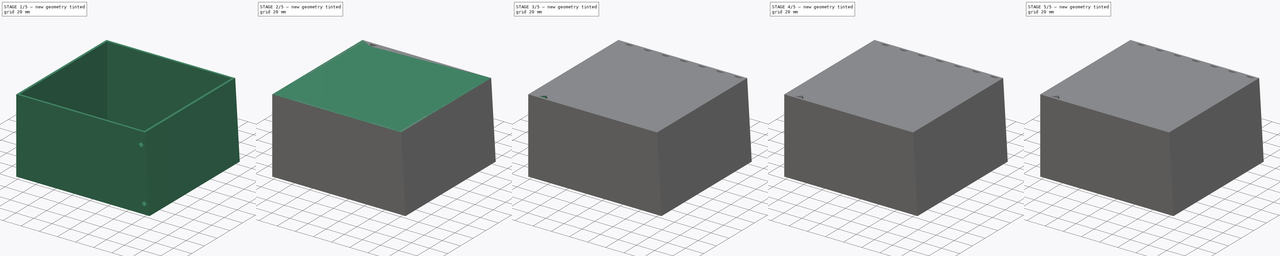
[diagram: build sequence overview — one tinted view per stage of 5, left to right]
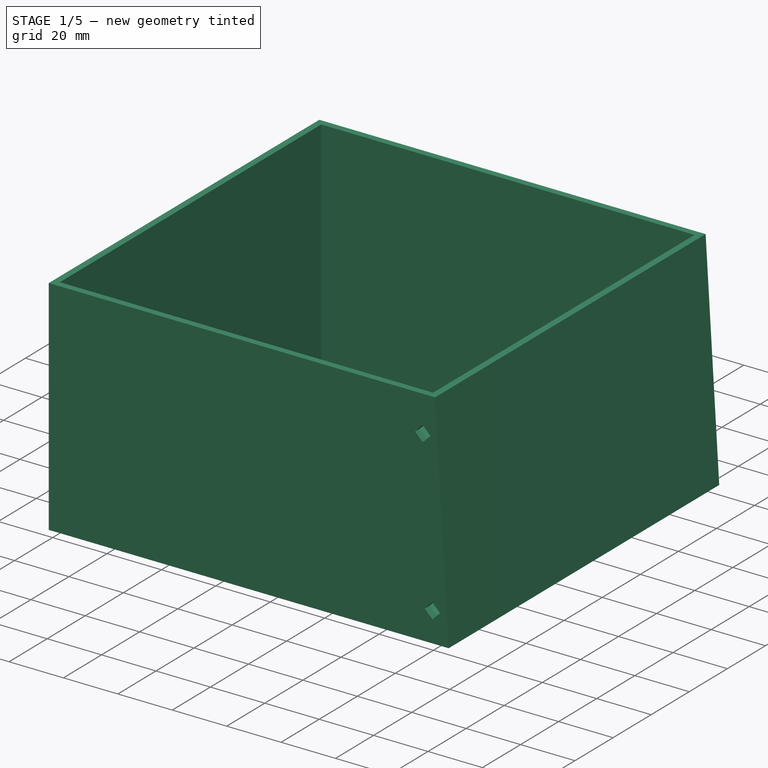
[diagram: stage 1 of 5 — iso view after this stage's code; geometry added in this stage tinted green]
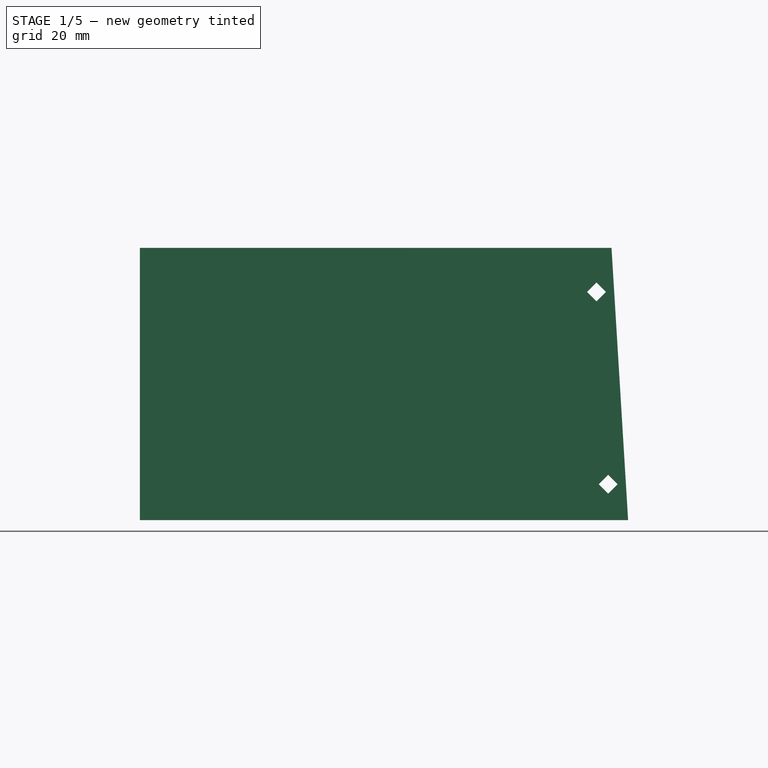
[diagram: stage 1 of 5 — front view after this stage's code; geometry added in this stage tinted green]
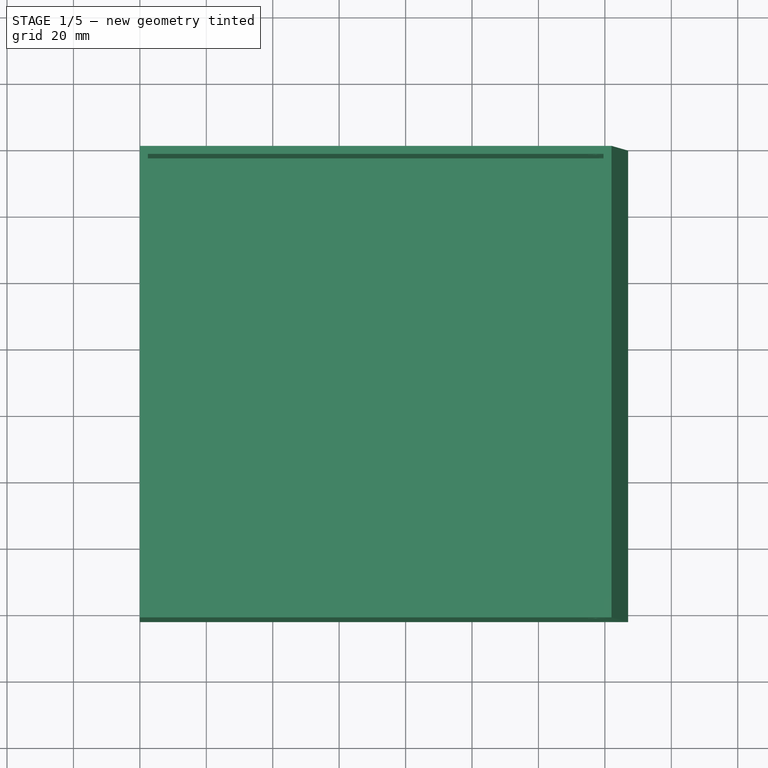
[diagram: stage 1 of 5 — top view after this stage's code; geometry added in this stage tinted green]
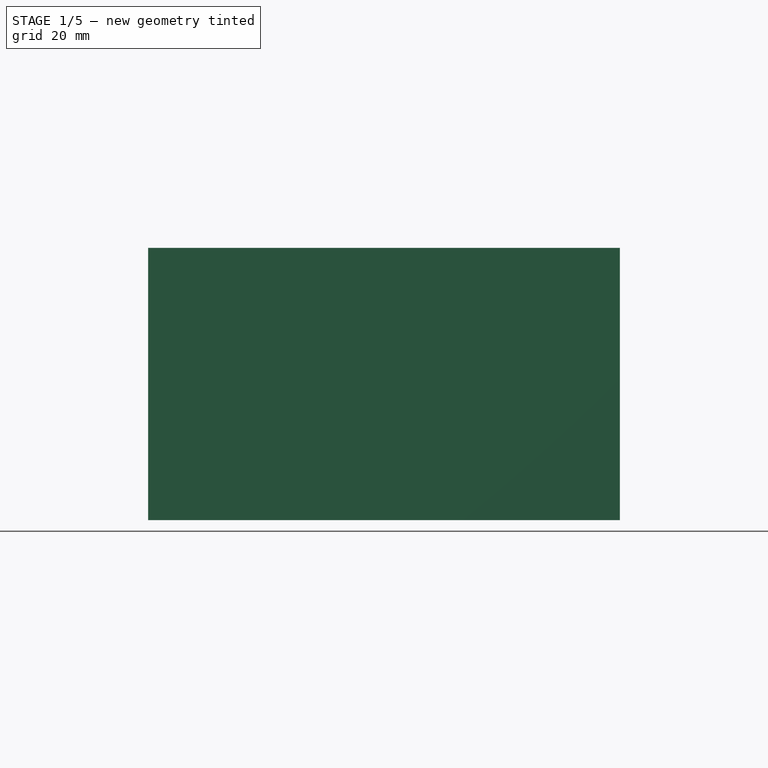
[diagram: stage 1 of 5 — right view after this stage's code; geometry added in this stage tinted green]
FCSTD DOCUMENT  (FreeCAD 1.0R39109 (Git))
Label: zip_tied_basket
License: All rights reserved
LicenseURL: https://en.wikipedia.org/wiki/All_rights_reserved
objects: PartDesign::LinearPattern×9, PartDesign::SubtractiveBox×6, Sketcher::SketchObject×4, Spreadsheet::Sheet×3, PartDesign::Pad×3, PartDesign::MultiTransform×3, PartDesign::Body×3, PartDesign::Thickness×2, PartDesign::Fillet×1, PartDesign::Pocket×1
note: 74 computed .brp shape members not serialized (recipe doc carries the construction recipe); baked Part::Feature solids carry a one-line shape summary decoded from their .brp

FEATURE [PartDesign::Body] Body
  AllowCompound = false
  Group = -> [Sketch,Pad,Thickness,Box,MultiTransform,LinearPattern,LinearPattern001,Box001,MultiTransform001,LinearPattern002,LinearPattern003,Box002,LinearPattern004]
  Origin = -> Origin
  Tip = -> LinearPattern004
FEATURE [Sketcher::SketchObject] Sketch001
  ArcFitTolerance = 1e-06
  AttachmentSupport = -> [XZ_Plane001]
  FullyConstrained = true
  MakeInternals = false
  MapMode = 5
  Placement = pos=(0,0,0) rot=(1,0,0;1.5708rad)
  expr: Constraints[10] = <<mea001>>.height
  expr: Constraints[8] = <<mea001>>.bottomLength
  expr: Constraints[9] = <<mea001>>.upperLength
  sketch-geometry (4):
    g0: LineSegment StartX=0 StartY=82 StartZ=0 EndX=0 EndY=0 EndZ=0
    g1: LineSegment StartX=0 StartY=82 StartZ=0 EndX=142 EndY=82 EndZ=0
    g2: LineSegment StartX=142 StartY=82 StartZ=0 EndX=147 EndY=0 EndZ=0
    g3: LineSegment StartX=147 StartY=0 StartZ=0 EndX=0 EndY=0 EndZ=0
  constraints (11):
    c: PointOnObject(g0,g-2)
    c: Coincident(g0,g-1)
    c: Coincident(g1,g0)
    c: Horizontal(g1)
    c: Coincident(g2,g1)
    c: PointOnObject(g2,g-1)
    c: Coincident(g3,g2)
    c: Coincident(g3,g0)
    c: DistanceX(g3,g3) = 147
    c: DistanceX(g1,g1) = 142
    c: DistanceY(g0,g0) = 82
FEATURE [PartDesign::Pad] Pad001
  Direction = (0,-1,2e-16)
  Length = 142
  Length2 = 10
  Placement = pos=(0,0,0) rot=(1,0,0;1.5708rad)
  Profile = -> Sketch001
  ReferenceAxis = -> Sketch001 [N_Axis]
  Refine = true
  Suppressed = false
  Type = 0
  expr: Length = <<mea001>>.width
FEATURE [Spreadsheet::Sheet] Spreadsheet001  label="mea001"
  cells = A1='height; B1(height)==82 mm; A2='upperLength; B2(upperLength)==142 mm; A3='bottomLength; B3(bottomLength)==147 mm; A4='width; B4(width)==142 mm
FEATURE [PartDesign::Thickness] Thickness001
  Base = -> Pad001 [Face4]
  BaseFeature = -> Pad001
  Intersection = false
  Join = 0
  Mode = 0
  Refine = true
  Reversed = true
  SupportTransform = false
  Suppressed = false
  Value = 2.4
FEATURE [PartDesign::SubtractiveBox] Box003
  AttacherType = Attacher::AttachEngine3D
  AttachmentOffset = pos=(-141,8,0) rot=(0,0,1;0.785398rad)
  AttachmentSupport = -> [Thickness001]
  BaseFeature = -> Thickness001
  Height = 142
  Length = 4
  MapMode = 5
  Placement = pos=(141,-142,8) rot=(0.281085,0.678598,0.678598;3.68962rad)
  Refine = true
  Suppressed = false
  Width = 4
  expr: Height = <<mea>>.width
FEATURE [PartDesign::LinearPattern] LinearPattern005
  BaseFeature = -> Box003
  Direction = -> Box003 [Edge20]
  Length = 58
  Mode = 0
  Occurrences = 2
  Offset = 58
  Originals = -> [Box003]
  Placement = pos=(141,-142,8) rot=(0.281085,0.678598,0.678598;3.68962rad)
  Refine = true
  Reversed = true
  Suppressed = false
  TransformMode = 0
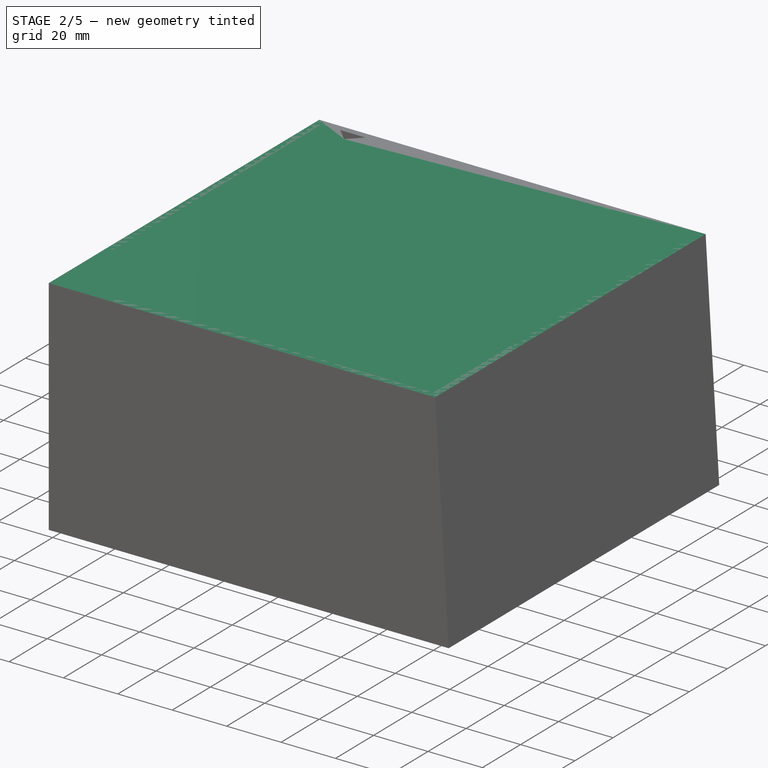
[diagram: stage 2 of 5 — iso view after this stage's code; geometry added in this stage tinted green]
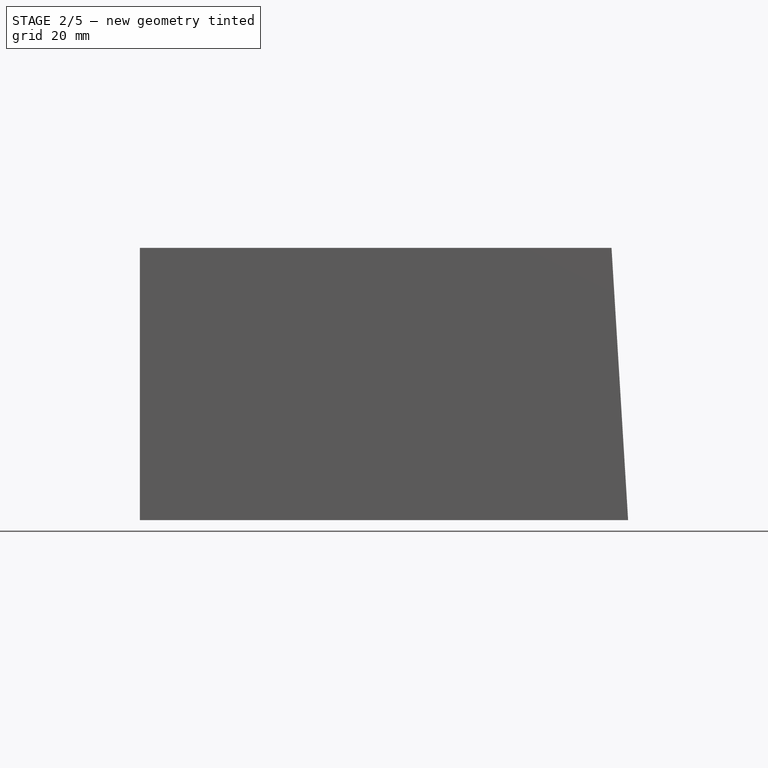
[diagram: stage 2 of 5 — front view after this stage's code; geometry added in this stage tinted green]
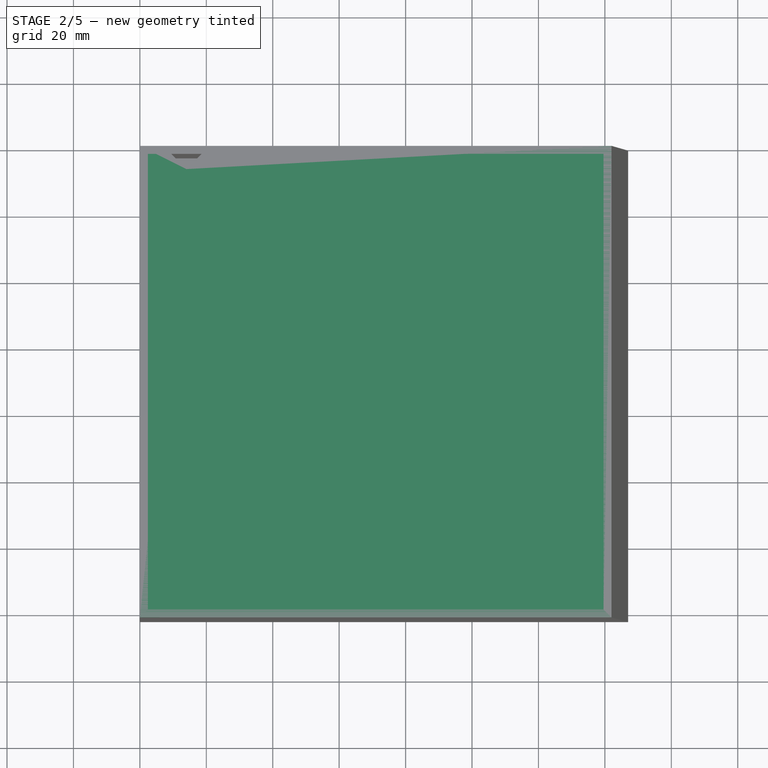
[diagram: stage 2 of 5 — top view after this stage's code; geometry added in this stage tinted green]
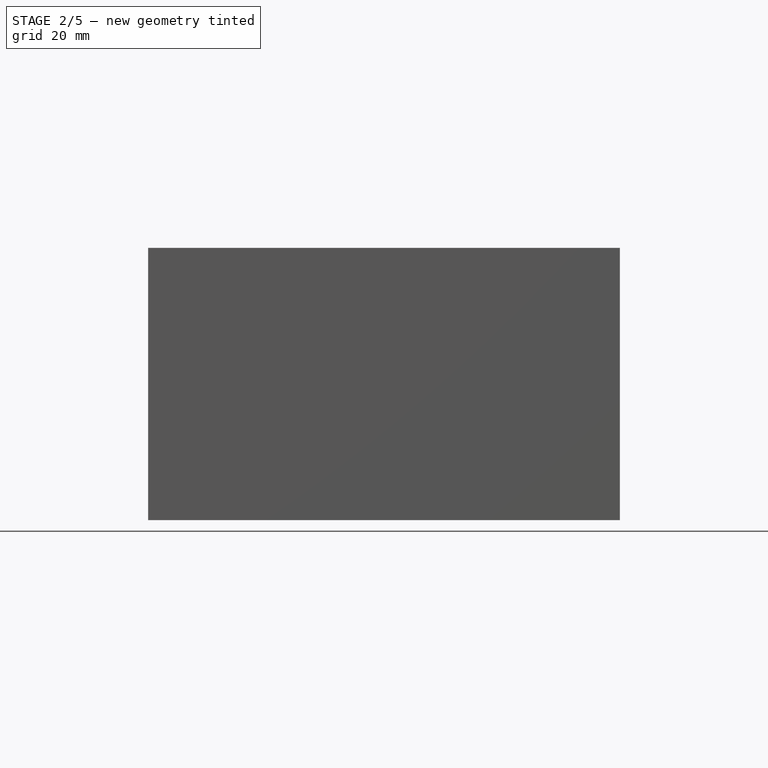
[diagram: stage 2 of 5 — right view after this stage's code; geometry added in this stage tinted green]
FEATURE [Sketcher::SketchObject] Sketch002
  ArcFitTolerance = 1e-06
  AttachmentSupport = -> [XZ_Plane002]
  FullyConstrained = true
  MakeInternals = false
  MapMode = 5
  Placement = pos=(0,0,0) rot=(1,0,0;1.5708rad)
  expr: Constraints[10] = <<mea002>>.height
  expr: Constraints[8] = <<mea002>>.bottomLength
  expr: Constraints[9] = <<mea002>>.upperLength
  sketch-geometry (4):
    g0: LineSegment StartX=0 StartY=82 StartZ=0 EndX=0 EndY=0 EndZ=0
    g1: LineSegment StartX=0 StartY=82 StartZ=0 EndX=142 EndY=82 EndZ=0
    g2: LineSegment StartX=142 StartY=82 StartZ=0 EndX=147 EndY=0 EndZ=0
    g3: LineSegment StartX=147 StartY=0 StartZ=0 EndX=0 EndY=0 EndZ=0
  constraints (11):
    c: PointOnObject(g0,g-2)
    c: Coincident(g0,g-1)
    c: Coincident(g1,g0)
    c: Horizontal(g1)
    c: Coincident(g2,g1)
    c: PointOnObject(g2,g-1)
    c: Coincident(g3,g2)
    c: Coincident(g3,g0)
    c: DistanceX(g3,g3) = 147
    c: DistanceX(g1,g1) = 142
    c: DistanceY(g0,g0) = 82
FEATURE [PartDesign::Pad] Pad002
  Direction = (0,-1,2e-16)
  Length = 142
  Length2 = 10
  Placement = pos=(0,0,0) rot=(1,0,0;1.5708rad)
  Profile = -> Sketch002
  ReferenceAxis = -> Sketch002 [N_Axis]
  Refine = true
  Suppressed = false
  Type = 0
  expr: Length = <<mea002>>.width
FEATURE [Spreadsheet::Sheet] Spreadsheet002  label="mea002"
  cells = A1='height; B1(height)==82 mm; A2='upperLength; B2(upperLength)==142 mm; A3='bottomLength; B3(bottomLength)==147 mm; A4='width; B4(width)==142 mm
FEATURE [PartDesign::SubtractiveBox] Box004
  AttacherType = Attacher::AttachEngine3D
  AttachmentOffset = pos=(14,-7,0) rot=(0,0,1;0.785398rad)
  AttachmentSupport = -> [XY_Plane002]
  BaseFeature = -> Pad002
  Height = 82
  Length = 10
  MapMode = 5
  Placement = pos=(14,-7,0) rot=(0,0,1;0.785398rad)
  Refine = true
  Suppressed = false
  Width = 10
  expr: Height = <<mea002>>.height
FEATURE [PartDesign::Body] Body002  label="vaseBody"
  AllowCompound = false
  Group = -> [Sketch002,Pad002,Box004,Fillet,LinearPattern006,Box005]
  Origin = -> Origin002
  Tip = -> Box005
FEATURE [Sketcher::SketchObject] Sketch004
  ArcFitTolerance = 1e-06
  AttachmentSupport = -> [LinearPattern005]
  ExternalGeometry = -> [LinearPattern005]
  FullyConstrained = true
  MakeInternals = false
  MapMode = 5
  Placement = pos=(146.492,-142,8.33486) rot=(0,1,0;1.5099rad)
  sketch-geometry (4):
    g0: LineSegment StartX=-63.802 StartY=134.172 StartZ=0 EndX=-60.9735 EndY=137 EndZ=0
    g1: LineSegment StartX=-60.9735 StartY=137 StartZ=0 EndX=-58.1451 EndY=134.172 EndZ=0
    g2: LineSegment StartX=-58.1451 StartY=134.172 StartZ=0 EndX=-60.9735 EndY=131.343 EndZ=0
    g3: LineSegment StartX=-60.9735 StartY=131.343 StartZ=0 EndX=-63.802 EndY=134.172 EndZ=0
  constraints (12):
    c: Distance(g0) = 4
    c: Angle(g-1,g0) = 0.785398
    c: Distance(g1) = 4
    c: Angle(g-1,g1) = -0.785398
    c: Coincident(g1,g0)
    c: Distance(g2) = 4
    c: Angle(g-1,g2) = -2.35619
    c: Coincident(g2,g1)
    c: Coincident(g3,g2)
    c: Coincident(g3,g0)
    c: Distance(g0,g-3) = 5
    c: Distance(g0,g-4) = 10
FEATURE [PartDesign::Pocket] Pocket
  BaseFeature = -> LinearPattern005
  Direction = (-0.998146,0,-0.0608626)
  Length = 5
  Length2 = 5
  Placement = pos=(141,-142,8) rot=(0.281085,0.678598,0.678598;3.68962rad)
  Profile = -> Sketch004
  ReferenceAxis = -> Sketch004 [N_Axis]
  Refine = true
  Suppressed = false
  Type = 0
FEATURE [PartDesign::LinearPattern] LinearPattern007
  Direction = -> Sketch004 [H_Axis]
  Length = 58
  Mode = 0
  Occurrences = 2
  Offset = 58
  Placement = pos=(141,-142,8) rot=(0.281085,0.678598,0.678598;3.68962rad)
  Refine = true
  Suppressed = false
  TransformMode = 0
FEATURE [PartDesign::LinearPattern] LinearPattern008
  Direction = -> Sketch004 [V_Axis]
  Length = 125
  Mode = 0
  Occurrences = 2
  Offset = 125
  Placement = pos=(141,-142,8) rot=(0.281085,0.678598,0.678598;3.68962rad)
  Refine = true
  Reversed = true
  Suppressed = false
  TransformMode = 0
FEATURE [PartDesign::MultiTransform] MultiTransform002
  BaseFeature = -> Pocket
  Originals = -> [Pocket]
  Placement = pos=(141,-142,8) rot=(0.281085,0.678598,0.678598;3.68962rad)
  Refine = true
  Suppressed = false
  TransformMode = 0
  Transformations = -> [LinearPattern007,LinearPattern008]
FEATURE [PartDesign::Body] Body001
  AllowCompound = false
  Group = -> [Sketch001,Pad001,Thickness001,Box003,LinearPattern005,Sketch004,Pocket,MultiTransform002,LinearPattern007,LinearPattern008]
  Origin = -> Origin001
  Tip = -> MultiTransform002
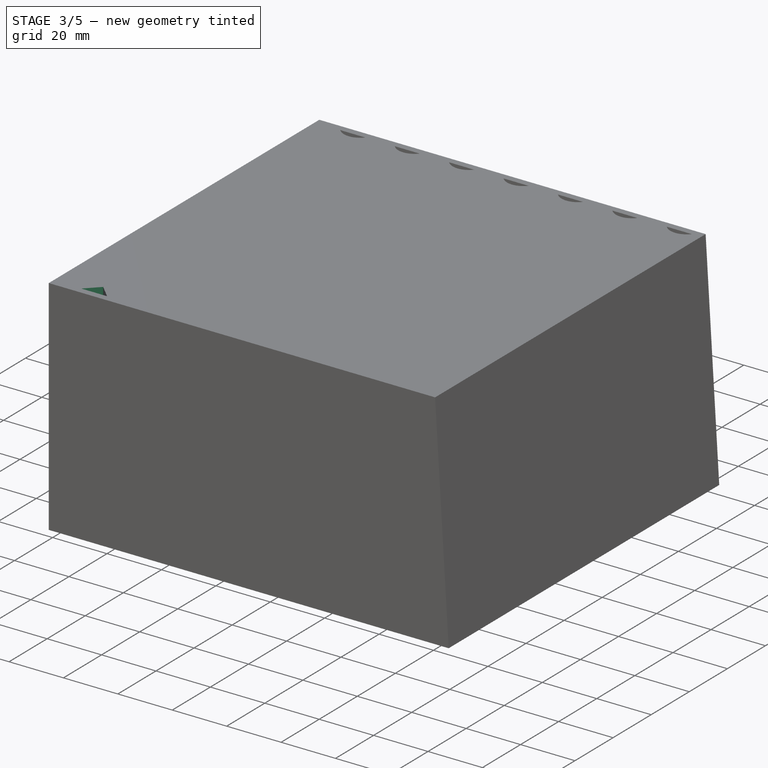
[diagram: stage 3 of 5 — iso view after this stage's code; geometry added in this stage tinted green]
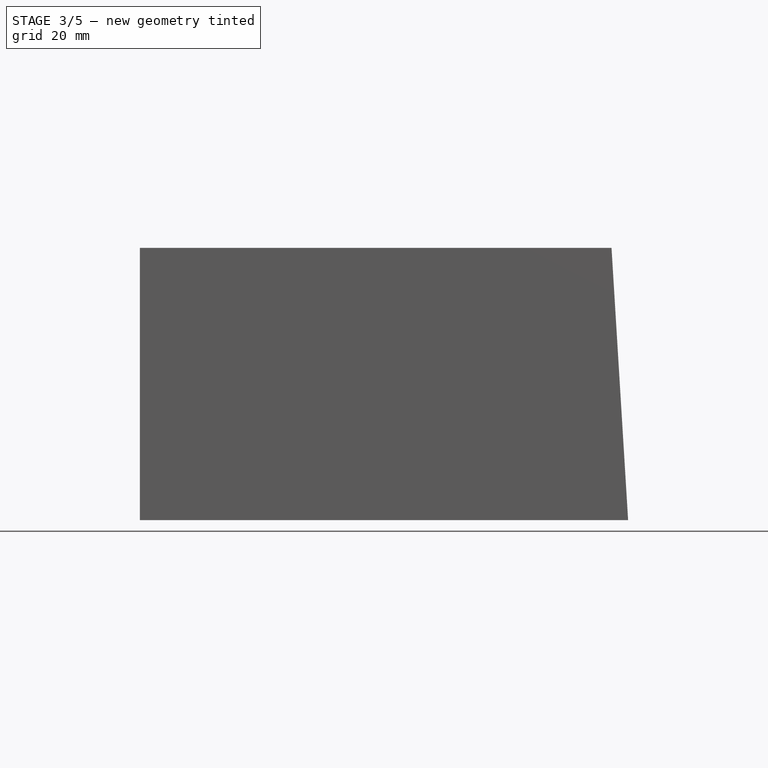
[diagram: stage 3 of 5 — front view after this stage's code; geometry added in this stage tinted green]
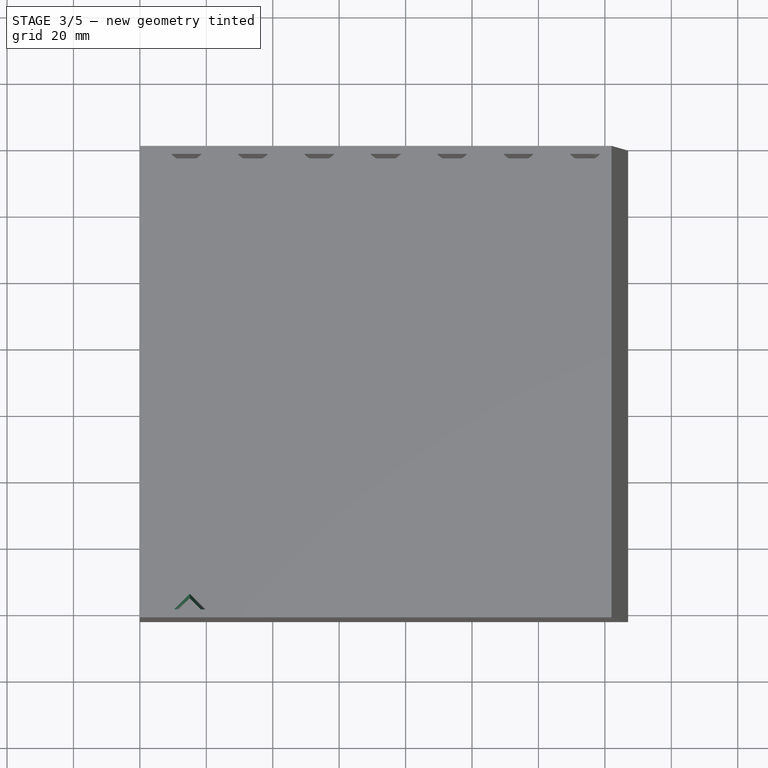
[diagram: stage 3 of 5 — top view after this stage's code; geometry added in this stage tinted green]
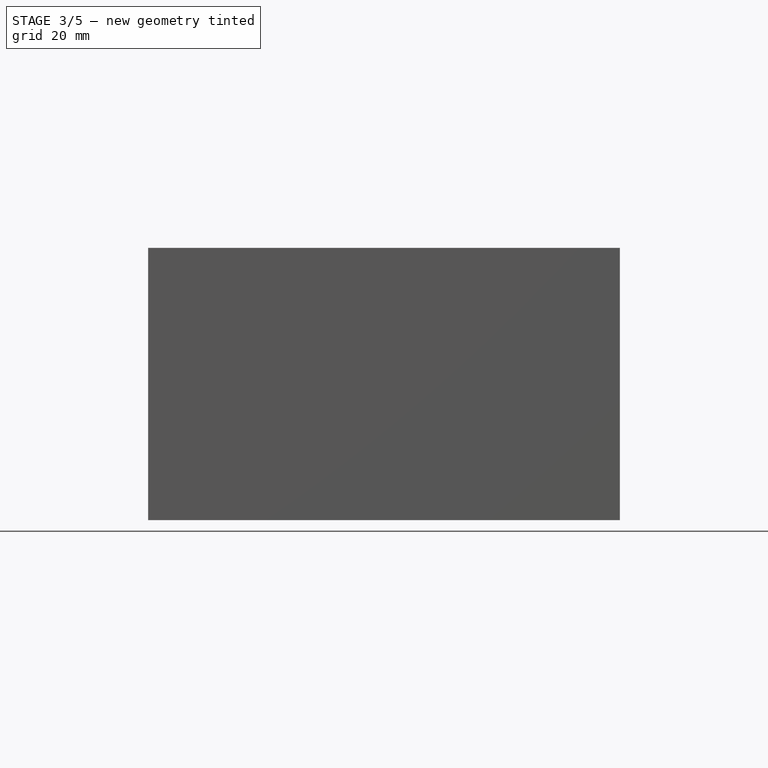
[diagram: stage 3 of 5 — right view after this stage's code; geometry added in this stage tinted green]
FEATURE [PartDesign::Fillet] Fillet
  Base = -> Box004 [Edge20,Edge19,Edge17]
  BaseFeature = -> Box004
  Placement = pos=(14,-7,0) rot=(0,0,1;0.785398rad)
  Radius = 6
  Refine = true
  SupportTransform = false
  Suppressed = false
  UseAllEdges = false
FEATURE [PartDesign::LinearPattern] LinearPattern006
  BaseFeature = -> Fillet
  Direction = -> X_Axis002
  Length = 120
  Mode = 1
  Occurrences = 7
  Offset = 20
  Originals = -> [Box004,Fillet]
  Placement = pos=(14,-7,0) rot=(0,0,1;0.785398rad)
  Refine = true
  Suppressed = false
  TransformMode = 0
FEATURE [PartDesign::SubtractiveBox] Box005
  AttacherType = Attacher::AttachEngine3D
  AttachmentOffset = pos=(15,-149,0) rot=(0,0,1;0.785398rad)
  AttachmentSupport = -> [XY_Plane002]
  BaseFeature = -> LinearPattern006
  Height = 82
  Length = 10
  MapMode = 5
  Placement = pos=(15,-149,0) rot=(0,0,1;0.785398rad)
  Refine = true
  Suppressed = false
  Width = 10
  expr: Height = <<mea>>.height
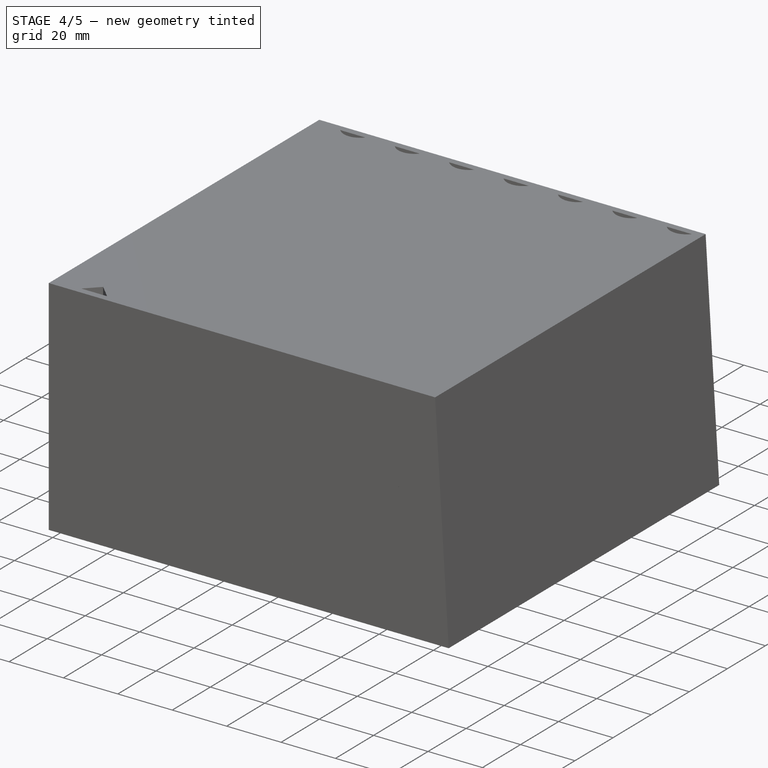
[diagram: stage 4 of 5 — iso view after this stage's code; geometry added in this stage tinted green]
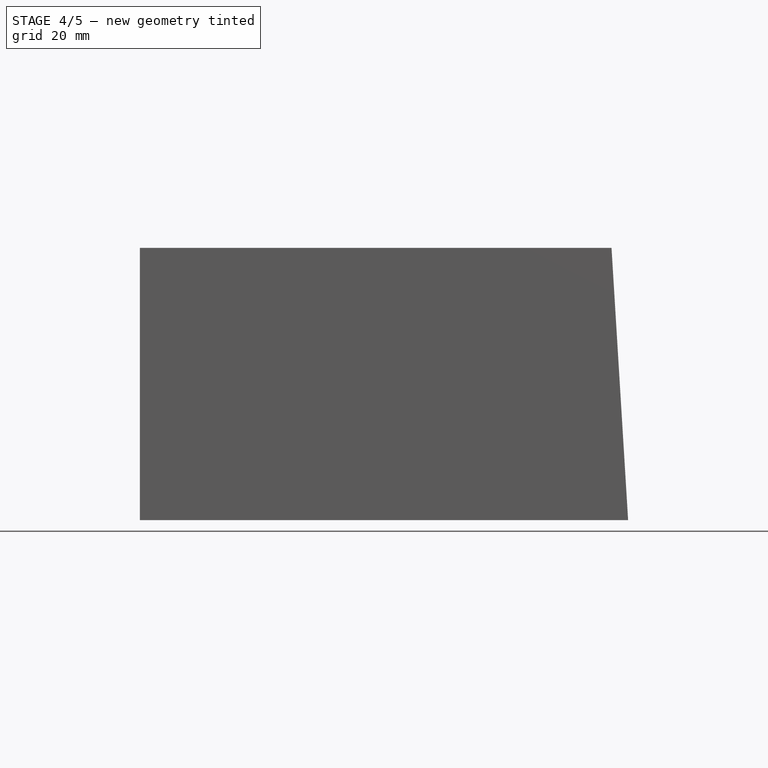
[diagram: stage 4 of 5 — front view after this stage's code; geometry added in this stage tinted green]
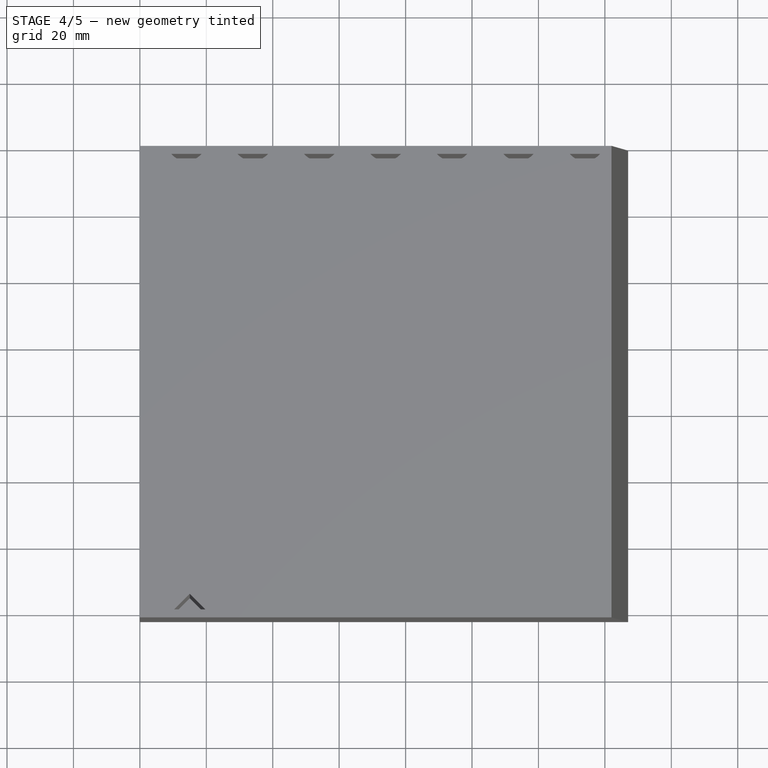
[diagram: stage 4 of 5 — top view after this stage's code; geometry added in this stage tinted green]
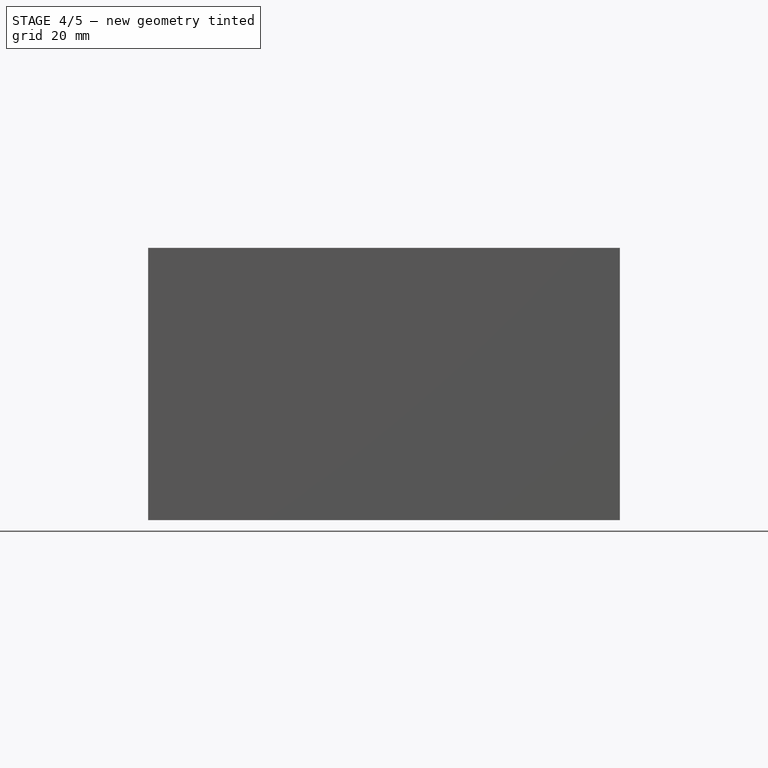
[diagram: stage 4 of 5 — right view after this stage's code; geometry added in this stage tinted green]
FEATURE [Spreadsheet::Sheet] Spreadsheet  label="mea"
  cells = A1='height; B1(height)==82 mm; A2='upperLength; B2(upperLength)==142 mm; A3='bottomLength; B3(bottomLength)==147 mm; A4='width; B4(width)==142 mm
FEATURE [Sketcher::SketchObject] Sketch
  ArcFitTolerance = 1e-06
  AttachmentSupport = -> [XZ_Plane]
  FullyConstrained = true
  MakeInternals = false
  MapMode = 5
  Placement = pos=(0,0,0) rot=(1,0,0;1.5708rad)
  expr: Constraints[10] = <<mea>>.height
  expr: Constraints[8] = <<mea>>.bottomLength
  expr: Constraints[9] = <<mea>>.upperLength
  sketch-geometry (4):
    g0: LineSegment StartX=0 StartY=82 StartZ=0 EndX=0 EndY=0 EndZ=0
    g1: LineSegment StartX=0 StartY=82 StartZ=0 EndX=142 EndY=82 EndZ=0
    g2: LineSegment StartX=142 StartY=82 StartZ=0 EndX=147 EndY=0 EndZ=0
    g3: LineSegment StartX=147 StartY=0 StartZ=0 EndX=0 EndY=0 EndZ=0
  constraints (11):
    c: PointOnObject(g0,g-2)
    c: Coincident(g0,g-1)
    c: Coincident(g1,g0)
    c: Horizontal(g1)
    c: Coincident(g2,g1)
    c: PointOnObject(g2,g-1)
    c: Coincident(g3,g2)
    c: Coincident(g3,g0)
    c: DistanceX(g3,g3) = 147
    c: DistanceX(g1,g1) = 142
    c: DistanceY(g0,g0) = 82
FEATURE [PartDesign::Pad] Pad
  Direction = (0,-1,2e-16)
  Length = 142
  Length2 = 10
  Placement = pos=(0,0,0) rot=(1,0,0;1.5708rad)
  Profile = -> Sketch
  ReferenceAxis = -> Sketch [N_Axis]
  Refine = true
  Suppressed = false
  Type = 0
  expr: Length = <<mea>>.width
FEATURE [PartDesign::Thickness] Thickness
  Base = -> Pad [Face4]
  BaseFeature = -> Pad
  Intersection = false
  Join = 0
  Mode = 0
  Refine = true
  Reversed = true
  SupportTransform = false
  Suppressed = false
  Value = 2.4
FEATURE [PartDesign::SubtractiveBox] Box
  AttacherType = Attacher::AttachEngine3D
  AttachmentOffset = pos=(19,10,0) rot=(0,0,1;0.785398rad)
  AttachmentSupport = -> [XZ_Plane]
  BaseFeature = -> Thickness
  Height = 142
  Length = 10
  MapMode = 5
  Placement = pos=(19,2.2e-15,10) rot=(0.862856,-0.357407,0.357407;1.71777rad)
  Refine = true
  Suppressed = false
  Width = 10
  expr: Height = <<mea>>.width
FEATURE [PartDesign::LinearPattern] LinearPattern
  Direction = -> X_Axis
  Length = 110
  Mode = 0
  Occurrences = 4
  Offset = 36.6667
  Placement = pos=(19,2.2e-15,10) rot=(0.862856,-0.357407,0.357407;1.71777rad)
  Refine = true
  Suppressed = false
  TransformMode = 0
FEATURE [PartDesign::LinearPattern] LinearPattern001
  Direction = -> Z_Axis
  Length = 50
  Mode = 0
  Occurrences = 3
  Offset = 25
  Placement = pos=(19,2.2e-15,10) rot=(0.862856,-0.357407,0.357407;1.71777rad)
  Refine = true
  Suppressed = false
  TransformMode = 0
FEATURE [PartDesign::MultiTransform] MultiTransform
  BaseFeature = -> Box
  Originals = -> [Box]
  Placement = pos=(19,2.2e-15,10) rot=(0.862856,-0.357407,0.357407;1.71777rad)
  Refine = true
  Suppressed = false
  TransformMode = 0
  Transformations = -> [LinearPattern,LinearPattern001]
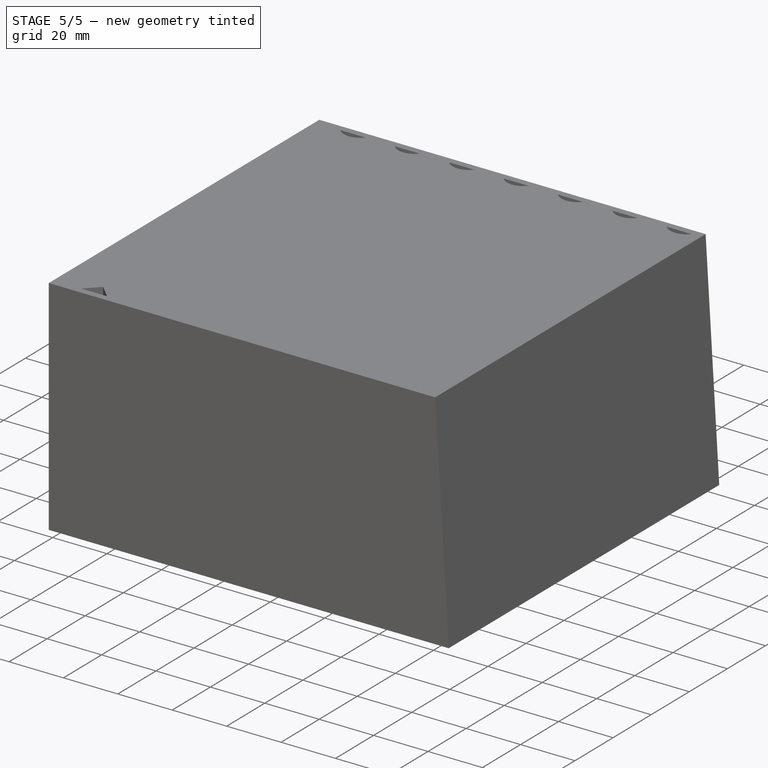
[diagram: stage 5 of 5 — iso view after this stage's code; geometry added in this stage tinted green]
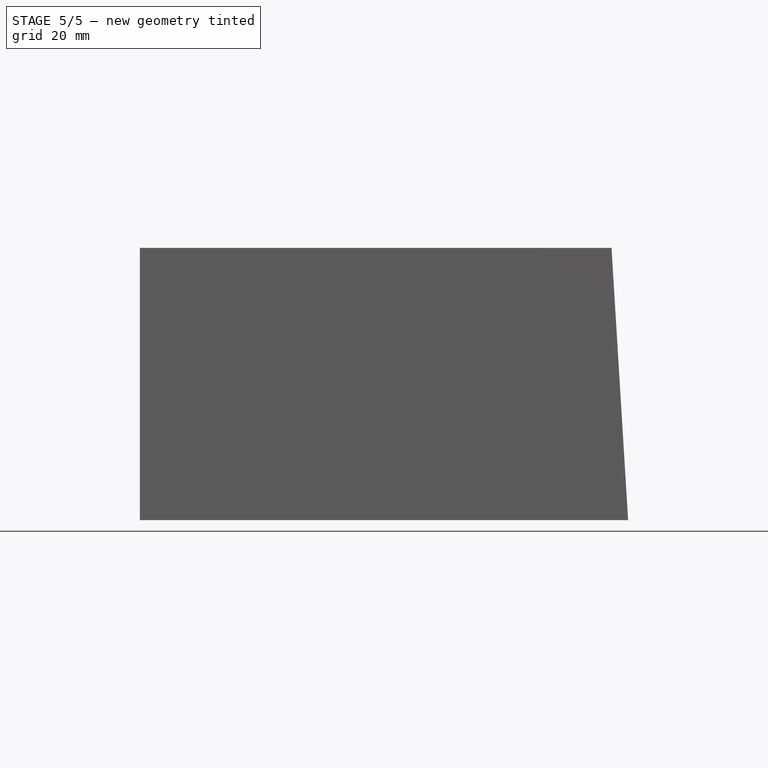
[diagram: stage 5 of 5 — front view after this stage's code; geometry added in this stage tinted green]
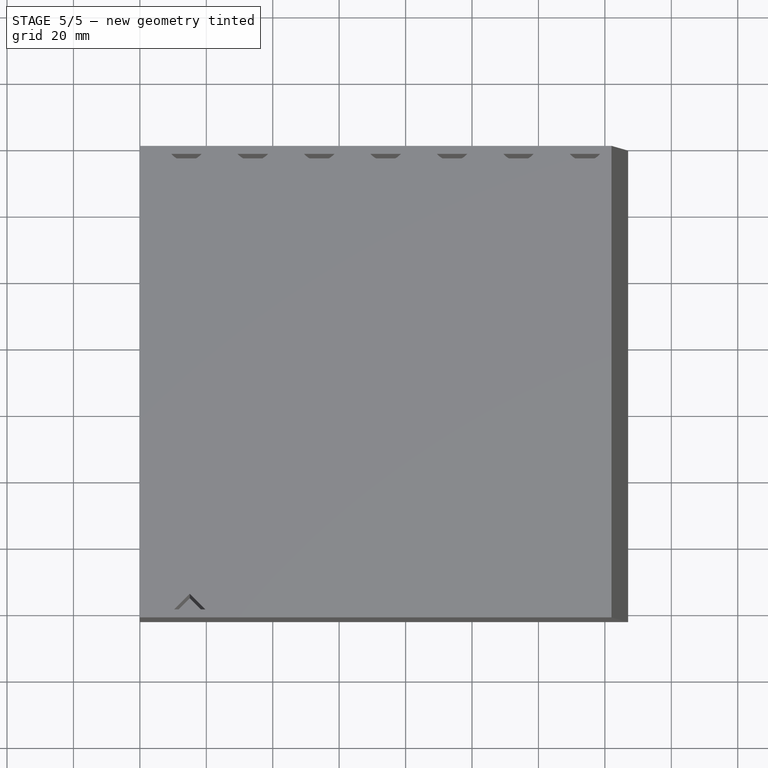
[diagram: stage 5 of 5 — top view after this stage's code; geometry added in this stage tinted green]
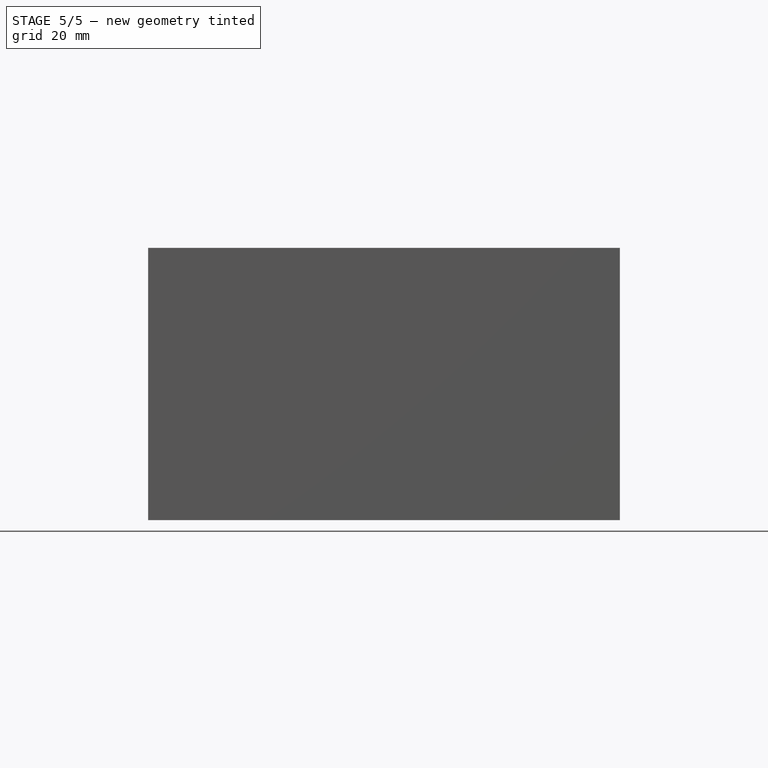
[diagram: stage 5 of 5 — right view after this stage's code; geometry added in this stage tinted green]
FEATURE [PartDesign::SubtractiveBox] Box001
  AttacherType = Attacher::AttachEngine3D
  AttachmentOffset = pos=(7,12,0) rot=(0,0,1;0.785398rad)
  AttachmentSupport = -> [MultiTransform]
  BaseFeature = -> MultiTransform
  Height = 147
  Length = 10
  MapMode = 5
  Placement = pos=(-2e-15,-12,17) rot=(0.678598,-0.281085,0.678598;3.68962rad)
  Refine = true
  Suppressed = false
  Width = 10
  expr: Height = <<mea>>.bottomLength
FEATURE [PartDesign::LinearPattern] LinearPattern002
  Direction = -> Y_Axis
  Length = 104
  Mode = 0
  Occurrences = 4
  Offset = 34.6667
  Placement = pos=(-2e-15,-12,17) rot=(0.678598,-0.281085,0.678598;3.68962rad)
  Refine = true
  Reversed = true
  Suppressed = false
  TransformMode = 0
FEATURE [PartDesign::LinearPattern] LinearPattern003
  Direction = -> Z_Axis
  Length = 50
  Mode = 0
  Occurrences = 3
  Offset = 25
  Placement = pos=(-2e-15,-12,17) rot=(0.678598,-0.281085,0.678598;3.68962rad)
  Refine = true
  Suppressed = false
  TransformMode = 0
FEATURE [PartDesign::MultiTransform] MultiTransform001
  BaseFeature = -> Box001
  Originals = -> [Box001]
  Placement = pos=(-2e-15,-12,17) rot=(0.678598,-0.281085,0.678598;3.68962rad)
  Refine = true
  Suppressed = false
  TransformMode = 0
  Transformations = -> [LinearPattern002,LinearPattern003]
FEATURE [PartDesign::SubtractiveBox] Box002
  AttacherType = Attacher::AttachEngine3D
  AttachmentOffset = pos=(57,134,0) rot=(0,0,1;0.785398rad)
  AttachmentSupport = -> [MultiTransform001]
  BaseFeature = -> MultiTransform001
  Height = 142
  Length = 4
  MapMode = 5
  Placement = pos=(134,-142,74) rot=(0.862856,0.357407,0.357407;4.56541rad)
  Refine = true
  Suppressed = false
  Width = 4
  expr: Height = <<mea>>.width
FEATURE [PartDesign::LinearPattern] LinearPattern004
  BaseFeature = -> Box002
  Direction = -> Box002 [Edge115]
  Length = 67
  Mode = 0
  Occurrences = 2
  Offset = 67
  Originals = -> [Box002]
  Placement = pos=(134,-142,74) rot=(0.862856,0.357407,0.357407;4.56541rad)
  Refine = true
  Suppressed = false
  TransformMode = 0
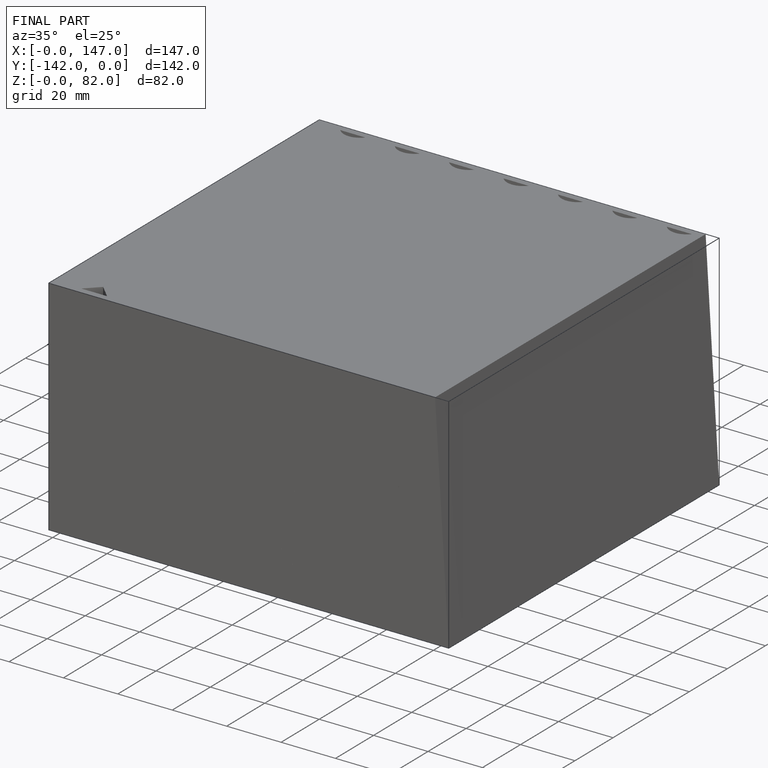
[diagram: finished part — iso view with bounding-box wireframe]
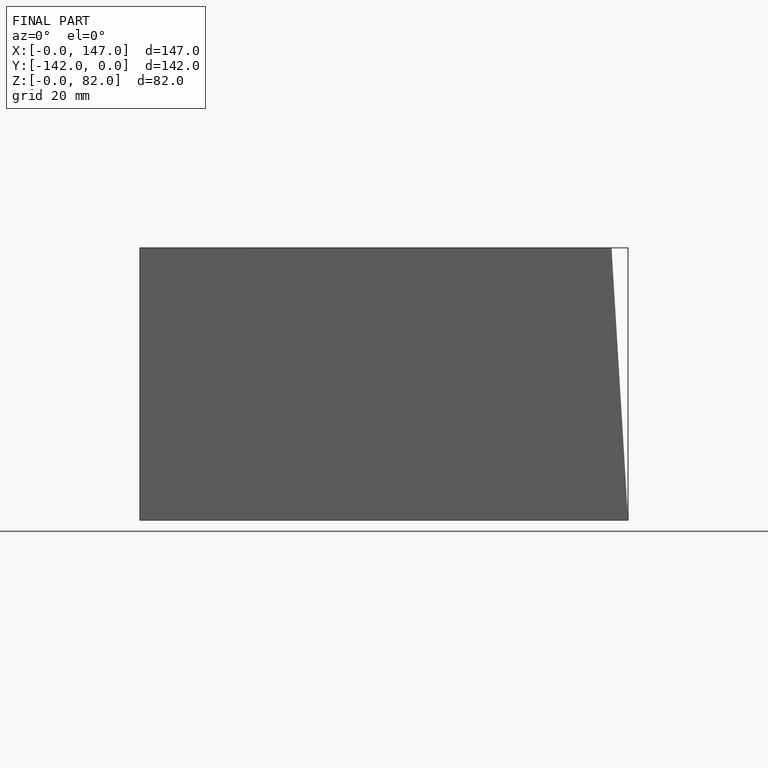
[diagram: finished part — front view with bounding-box wireframe]
